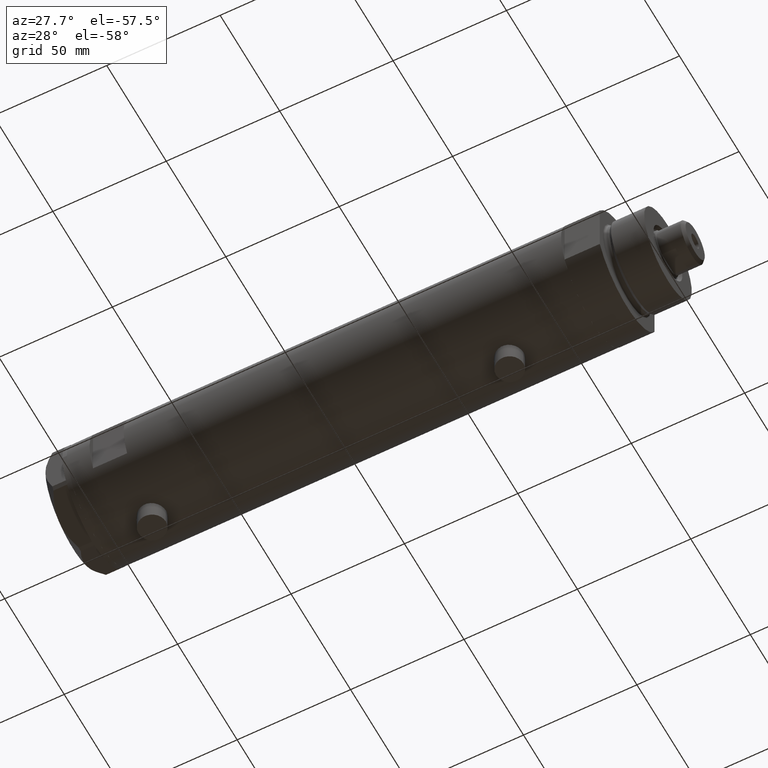
[diagram: clean part render]
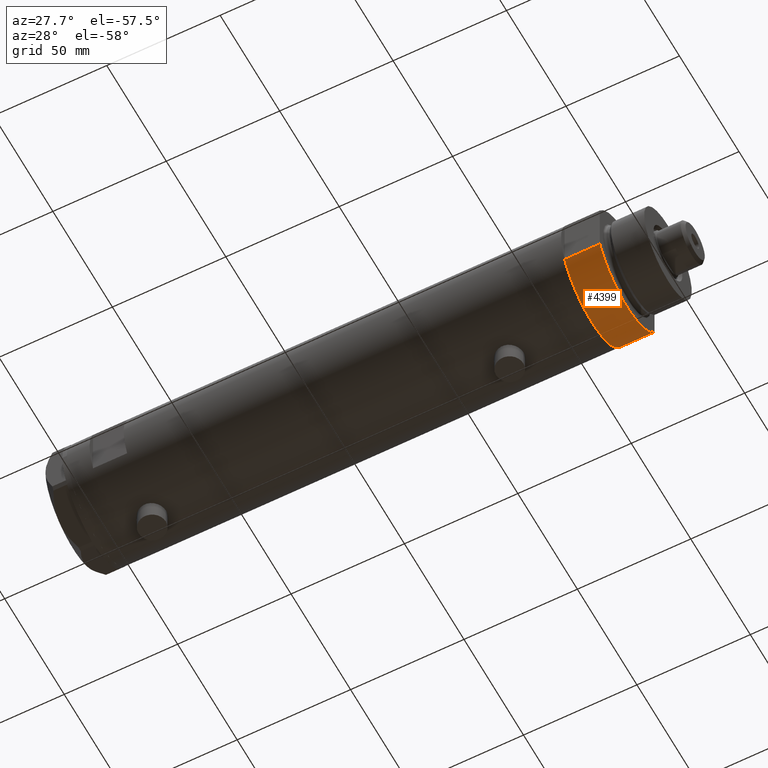
[diagram: same view with one face highlighted and labeled with its STEP entity id]
A machine part, auxiliary view. The second image highlights one B-rep face of the part: STEP entity #4399.
In plain terms, the highlighted cylindrical surface (partial cylindrical patch) has radius 26 mm, axis along (-1, -0, 0).
Its self-contained STEP definition (entity closure, byte-faithful):
#33 = DIRECTION ( 'NONE',  ( -1.000000000000000000, 0.000000000000000000, 0.000000000000000000 ) ) ;
#46 = CARTESIAN_POINT ( 'NONE',  ( 12.12435565298214080, 23.00000000000000355, 0.000000000000000000 ) ) ;
#79 = AXIS2_PLACEMENT_3D ( 'NONE', #1082, #1477, #1542 ) ;
#116 = VERTEX_POINT ( 'NONE', #3938 ) ;
#303 = CARTESIAN_POINT ( 'NONE',  ( 12.12435565298215323, -22.99999999999999645, 0.000000000000000000 ) ) ;
#518 = CIRCLE ( 'NONE', #3901, 26.00000000000000355 ) ;
#555 = VERTEX_POINT ( 'NONE', #303 ) ;
#616 = DIRECTION ( 'NONE',  ( 0.000000000000000000, 0.000000000000000000, 1.000000000000000000 ) ) ;
#730 = ORIENTED_EDGE ( 'NONE', *, *, #4854, .F. ) ;
#1056 = DIRECTION ( 'NONE',  ( -0.000000000000000000, -0.000000000000000000, 1.000000000000000000 ) ) ;
#1082 = CARTESIAN_POINT ( 'NONE',  ( 0.000000000000000000, 0.000000000000000000, 15.50000000000000000 ) ) ;
#1257 = VERTEX_POINT ( 'NONE', #46 ) ;
#1435 = CARTESIAN_POINT ( 'NONE',  ( 0.000000000000000000, 0.000000000000000000, 0.000000000000000000 ) ) ;
#1477 = DIRECTION ( 'NONE',  ( 0.000000000000000000, 0.000000000000000000, 1.000000000000000000 ) ) ;
#1516 = EDGE_CURVE ( 'NONE', #555, #116, #3986, .T. ) ;
#1542 = DIRECTION ( 'NONE',  ( 1.000000000000000000, 0.000000000000000000, 0.000000000000000000 ) ) ;
#1561 = AXIS2_PLACEMENT_3D ( 'NONE', #3029, #3770, #33 ) ;
#1725 = CIRCLE ( 'NONE', #79, 26.00000000000000355 ) ;
#1732 = DIRECTION ( 'NONE',  ( -0.000000000000000000, -0.000000000000000000, 1.000000000000000000 ) ) ;
#1743 = DIRECTION ( 'NONE',  ( 1.000000000000000000, 0.000000000000000000, 0.000000000000000000 ) ) ;
#1909 = ORIENTED_EDGE ( 'NONE', *, *, #1516, .F. ) ;
#2426 = CARTESIAN_POINT ( 'NONE',  ( 12.12435565298215323, -22.99999999999999645, 0.000000000000000000 ) ) ;
#2473 = LINE ( 'NONE', #3607, #2555 ) ;
#2555 = VECTOR ( 'NONE', #1732, 1000.000000000000000 ) ;
#2744 = ORIENTED_EDGE ( 'NONE', *, *, #3396, .T. ) ;
#2835 = ORIENTED_EDGE ( 'NONE', *, *, #4230, .T. ) ;
#3006 = VECTOR ( 'NONE', #1056, 1000.000000000000000 ) ;
#3029 = CARTESIAN_POINT ( 'NONE',  ( 0.000000000000000000, 0.000000000000000000, 15.50000000000000000 ) ) ;
#3045 = EDGE_LOOP ( 'NONE', ( #730, #1909, #2744, #2835 ) ) ;
#3211 = VERTEX_POINT ( 'NONE', #4350 ) ;
#3396 = EDGE_CURVE ( 'NONE', #555, #1257, #518, .T. ) ;
#3404 = CYLINDRICAL_SURFACE ( 'NONE', #1561, 26.00000000000000355 ) ;
#3607 = CARTESIAN_POINT ( 'NONE',  ( 12.12435565298215323, 23.00000000000000355, 0.000000000000000000 ) ) ;
#3770 = DIRECTION ( 'NONE',  ( -0.000000000000000000, -0.000000000000000000, -1.000000000000000000 ) ) ;
#3792 = FACE_OUTER_BOUND ( 'NONE', #3045, .T. ) ;
#3901 = AXIS2_PLACEMENT_3D ( 'NONE', #1435, #616, #1743 ) ;
#3938 = CARTESIAN_POINT ( 'NONE',  ( 12.12435565298215323, -22.99999999999999645, 15.50000000000000000 ) ) ;
#3986 = LINE ( 'NONE', #2426, #3006 ) ;
#4230 = EDGE_CURVE ( 'NONE', #1257, #3211, #2473, .T. ) ;
#4350 = CARTESIAN_POINT ( 'NONE',  ( 12.12435565298214790, 23.00000000000000355, 15.50000000000000000 ) ) ;
#4399 = ADVANCED_FACE ( 'NONE', ( #3792 ), #3404, .T. ) ;
#4854 = EDGE_CURVE ( 'NONE', #116, #3211, #1725, .T. ) ;